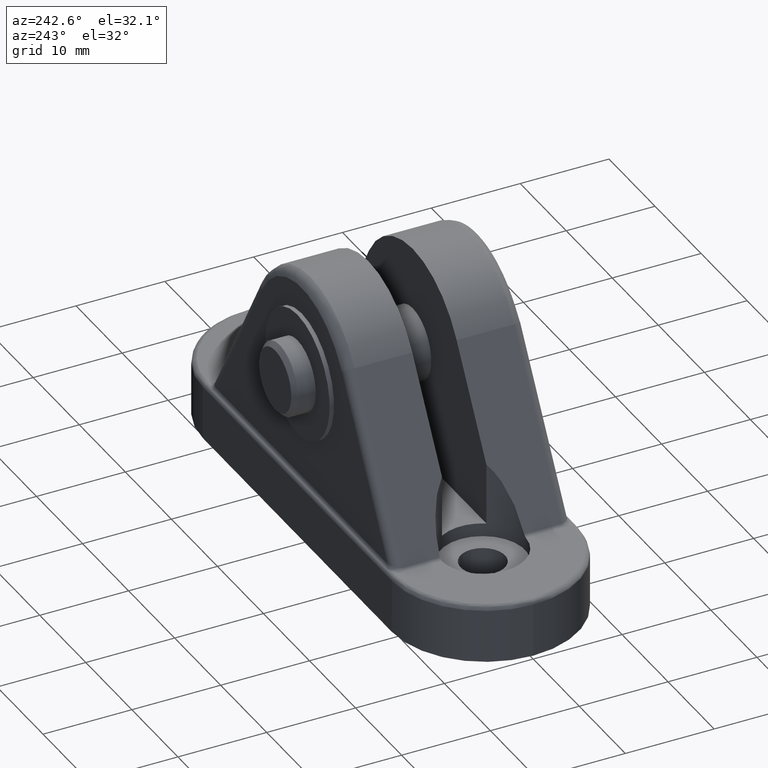
[diagram: clean part render]
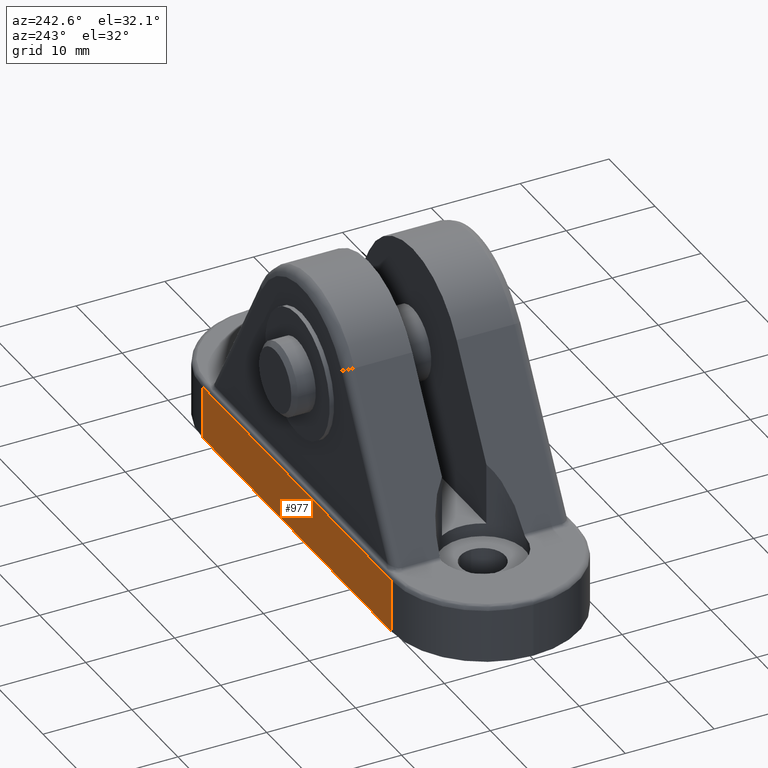
[diagram: same view with one face highlighted and labeled with its STEP entity id]
A machine part, auxiliary view. The second image highlights one B-rep face of the part: STEP entity #977.
In plain terms, the highlighted planar face has unit normal (0, -1, 0).
Its self-contained STEP definition (entity closure, byte-faithful):
#95=CARTESIAN_POINT('',(-20.500000000000000,21.0,0.0));
#96=VERTEX_POINT('',#95);
#104=CARTESIAN_POINT('',(20.500000000000000,21.0,0.0));
#105=VERTEX_POINT('',#104);
#106=CARTESIAN_POINT('',(-20.500000000000000,21.0,0.0));
#107=DIRECTION('',(1.0,0.0,0.0));
#108=VECTOR('',#107,41.0);
#109=LINE('',#106,#108);
#110=EDGE_CURVE('',#96,#105,#109,.T.);
#936=CARTESIAN_POINT('',(-20.500000000000000,21.0,6.000000000000043));
#937=VERTEX_POINT('',#936);
#945=CARTESIAN_POINT('',(-20.500000000000000,21.0,6.000000000000043));
#946=DIRECTION('',(0.0,0.0,-1.0));
#947=VECTOR('',#946,6.000000000000043);
#948=LINE('',#945,#947);
#949=EDGE_CURVE('',#937,#96,#948,.T.);
#954=CARTESIAN_POINT('',(-37.200001918771463,21.0,-3.000001865087839));
#955=DIRECTION('',(0.0,-1.0,0.0));
#956=DIRECTION('',(1.0,0.0,0.0));
#957=AXIS2_PLACEMENT_3D('',#954,#955,#956);
#958=PLANE('',#957);
#959=ORIENTED_EDGE('',*,*,#949,.F.);
#960=CARTESIAN_POINT('',(20.500000000000014,21.0,5.999999999999986));
#961=VERTEX_POINT('',#960);
#962=CARTESIAN_POINT('',(-20.500000000000000,21.0,6.000000000000043));
#963=DIRECTION('',(1.0,0.0,0.0));
#964=VECTOR('',#963,41.000000000000014);
#965=LINE('',#962,#964);
#966=EDGE_CURVE('',#937,#961,#965,.T.);
#967=ORIENTED_EDGE('',*,*,#966,.T.);
#968=CARTESIAN_POINT('',(20.500000000000000,21.0,0.0));
#969=DIRECTION('',(0.0,0.0,1.0));
#970=VECTOR('',#969,5.999999999999986);
#971=LINE('',#968,#970);
#972=EDGE_CURVE('',#105,#961,#971,.T.);
#973=ORIENTED_EDGE('',*,*,#972,.F.);
#974=ORIENTED_EDGE('',*,*,#110,.F.);
#975=EDGE_LOOP('',(#959,#967,#973,#974));
#976=FACE_OUTER_BOUND('',#975,.T.);
#977=ADVANCED_FACE('',(#976),#958,.F.);